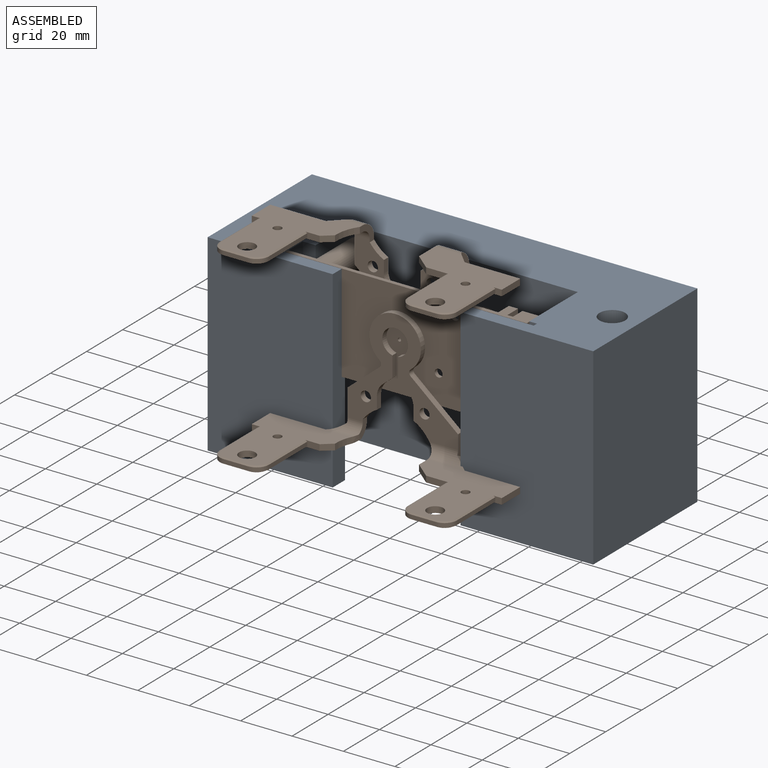
[diagram: assembled view]
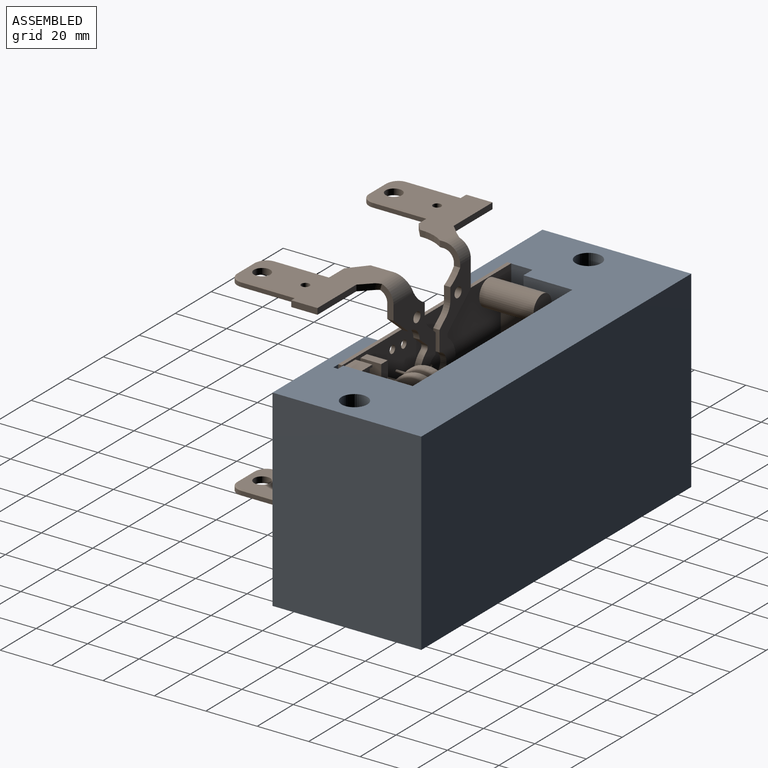
[diagram: assembled view, second angle]
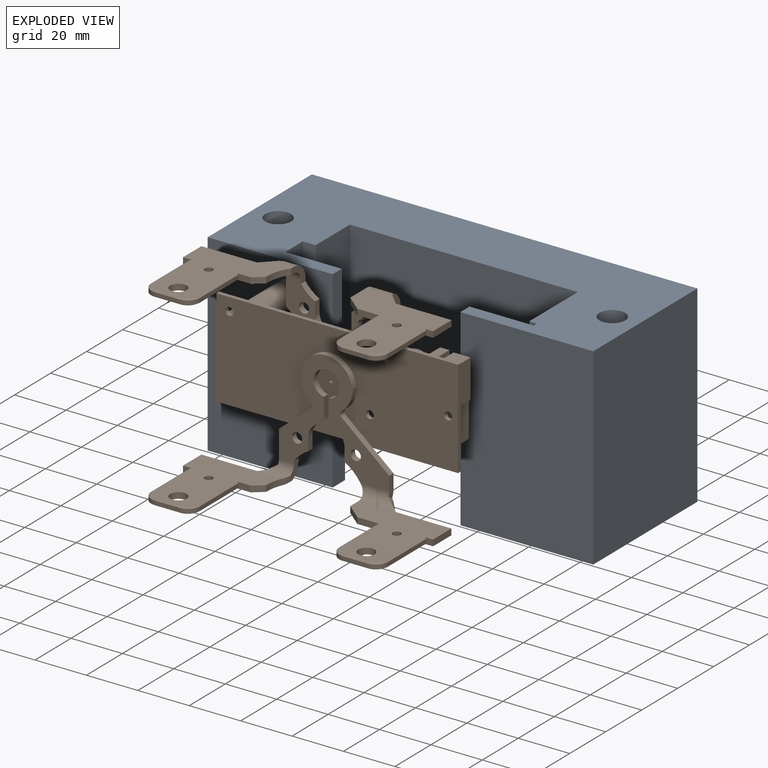
[diagram: exploded view]
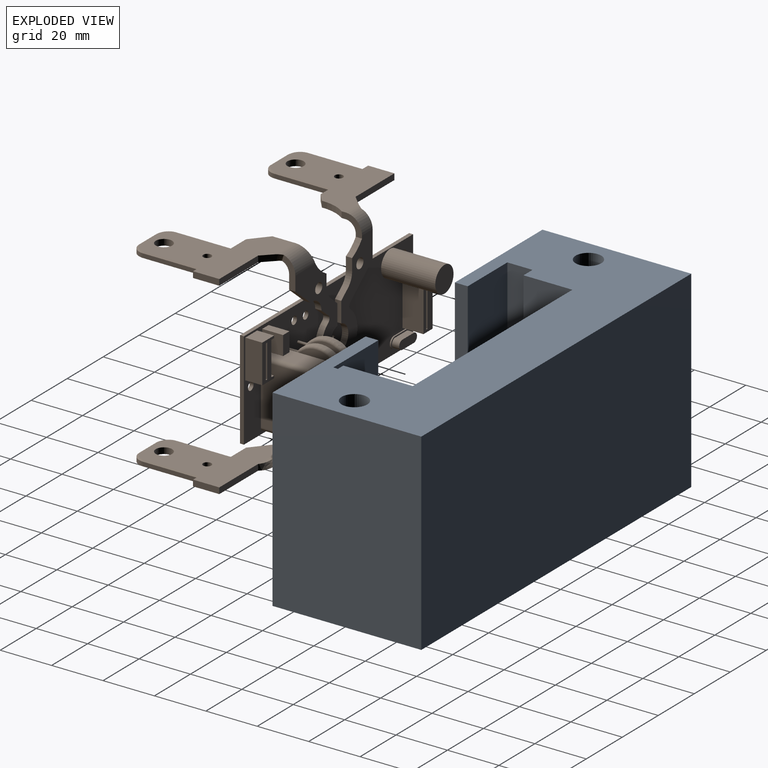
[diagram: exploded view, second angle]
ASSEMBLY  parts=2 mates=3
PART A: 24 faces, bbox 150x57.9x75 mm
  f0: plane 75x57.9mm, normal (-1,0,0), area 4342.5mm2, adj f2,f8,f9,f22
  f1: plane 75x57.9mm, normal (1,0,0), area 4342.5mm2, adj f2,f8,f9,f23
  f2: plane 150x57.9mm, normal (0,0,1), area 5670.5mm2, adj f0,f1,f3,f4,f5,f9,f10,f11
  f3: plane 75x6.8mm, normal (-1,0,0), area 441.6mm2, adj f2,f5,f6,f7,f8,f23
  f4: plane 75x6.8mm, normal (1,0,0), area 441.6mm2, adj f2,f8,f13,f17,f19,f22
  f5: plane 38x25mm, normal (0,1,0), area 950mm2, adj f2,f3,f6,f14
  f6: plane 25x1.8mm, normal (0,0,1), area 45mm2, adj f3,f5,f7,f14,f15
  f7: plane 37x22mm, normal (0,1,0), area 814mm2, adj f3,f6,f8,f20
  f8: plane 150x57.9mm, normal (0,0,-1), area 5795.1mm2, adj f0,f1,f3,f4,f7,f9,f10,f11
  f9: plane 150x75mm, normal (0,1,0), area 11250mm2, adj f0,f1,f2,f8
  f10: cylinder r=5mm len=75mm, axis (0,0,1), area 2356.2mm2, adj f2,f8
  f11: cylinder r=5mm len=75mm, axis (0,0,1), area 2356.2mm2, adj f2,f8
  f12: plane 38x9.8mm, normal (1,0,0), area 372.4mm2, adj f2,f13,f16,f17
  f13: plane 38x22mm, normal (0,1,0), area 836mm2, adj f2,f4,f12,f17
  f14: plane 38x1.8mm, normal (-1,0,0), area 68.4mm2, adj f2,f5,f6,f15
  f15: plane 38x3mm, normal (0,-1,0), area 114mm2, adj f2,f6,f14,f20
  f16: plane 38x5mm, normal (0,-1,0), area 190mm2, adj f2,f12,f17,f18
  f17: plane 22x9.8mm, normal (0,0,1), area 79.6mm2, adj f4,f12,f13,f16,f18,f19
  f18: plane 75x27mm, normal (1,0,0), area 1721mm2, adj f2,f8,f16,f17,f19,f21
  f19: plane 37x17mm, normal (0,1,0), area 629mm2, adj f4,f8,f17,f18
  f20: plane 75x27mm, normal (-1,0,0), area 2025mm2, adj f2,f7,f8,f15,f21
  f21: plane 88.7x75mm, normal (0,-1,0), area 6652.5mm2, adj f2,f8,f18,f20
  f22: plane 75x48.65mm, normal (0,-1,0), area 3648.7mm2, adj f0,f2,f4,f8
  f23: plane 75x51.65mm, normal (0,-1,0), area 3873.7mm2, adj f1,f2,f3,f8
PART B: 258 faces, bbox 76x68.2x97.3 mm
  f0: plane 93.98x38.1mm, normal (0,-1,0), area 3024.5mm2, adj f4,f5,f6,f7,f9,f10,f11,f12
  f1: plane 93.98x38.1mm, normal (0,1,0), area 2408.6mm2, adj f4,f5,f6,f7,f9,f10,f11,f12
  f2: plane 24.06x13.7mm, normal (0,1,0), area 150.1mm2, adj f6,f8,f92,f93,f98,f99,f100,f101
  f3: plane 24.06x13.7mm, normal (0,-1,0), area 150.1mm2, adj f4,f8,f178,f179,f184,f185,f186,f187
  f4: plane 93.98x1.52mm, normal (1,0,0), area 143.2mm2, adj f0,f1,f3,f5,f7,f173,f174
  f5: plane 38.1x1.52mm, normal (0,0,1), area 58.1mm2, adj f0,f1,f4,f6
  f6: plane 93.98x1.52mm, normal (-1,0,0), area 143.2mm2, adj f0,f1,f2,f5,f7,f87,f88
  f7: plane 38.1x1.52mm, normal (0,0,-1), area 58.1mm2, adj f0,f1,f4,f6
  f8: cylinder r=0.64mm len=1.52mm, axis (0,-1,0), area 6.1mm2, adj f2,f3
  f9: cylinder r=1.52mm len=3.05mm, axis (0,1,0), area 14.6mm2, adj f0,f1
  f10: cylinder r=1.52mm len=3.05mm, axis (0,1,0), area 14.6mm2, adj f0,f1
  f11: cylinder r=1.52mm len=3.05mm, axis (0,-1,0), area 14.6mm2, adj f0,f1
  f12: cylinder r=1.52mm len=3.05mm, axis (0,-1,0), area 14.6mm2, adj f0,f1
  f13: cylinder r=1.52mm len=3.05mm, axis (0,-1,0), area 14.6mm2, adj f0,f1
  f14: plane 22.1x8.13mm, normal (0,0,-1), area 179.6mm2, adj f1,f15,f16,f17
  f15: plane 8.13x1.27mm, normal (-0.71,0,-0.71), area 14.6mm2, adj f1,f14,f16,f19
  f16: plane 23.37x5.08mm, normal (0,1,0), area 101.6mm2, adj f14,f15,f17,f18,f19,f20,f21,f22
  f17: plane 8.13x5.08mm, normal (1,0,0), area 41.3mm2, adj f1,f14,f16,f18
  f18: plane 23.37x8.13mm, normal (0,0,1), area 189.9mm2, adj f1,f16,f17,f19
  f19: plane 8.13x3.81mm, normal (-1,0,0), area 31mm2, adj f1,f15,f16,f18
  f20: plane 2.54x0.76mm, normal (-1,0,0), area 1.9mm2, adj f16,f21,f23,f24
  f21: plane 21.34x2.54mm, normal (0,0,-1), area 54.2mm2, adj f16,f20,f22,f24
  f22: plane 2.54x0.76mm, normal (1,0,0), area 1.9mm2, adj f16,f21,f23,f24
  f23: plane 21.34x2.54mm, normal (0,0,1), area 54.2mm2, adj f16,f20,f22,f24
  f24: plane 21.34x0.76mm, normal (0,1,0), area 16.3mm2, adj f20,f21,f22,f23
  f25: cylinder r=5.08mm len=21.08mm, axis (0,1,0), area 672.9mm2, adj f1,f26
  f26: plane 10.16x10.16mm, normal (0,1,0), area 81.1mm2, adj f25
  f27: plane 14.99x6.6mm, normal (0,0,1), area 99mm2, adj f1,f28,f34,f35
  f28: plane 6.6x6.6mm, normal (-1,0,0), area 43.6mm2, adj f1,f27,f29,f35
  f29: plane 6.6x0.89mm, normal (0,0,-1), area 5.9mm2, adj f1,f28,f30,f35
  f30: plane 6.6x1.52mm, normal (1,0,0), area 10.1mm2, adj f1,f29,f31,f35
  f31: plane 13.21x6.6mm, normal (0,0,-1), area 87.2mm2, adj f1,f30,f32,f35
  f32: plane 6.6x1.52mm, normal (-1,0,0), area 10.1mm2, adj f1,f31,f33,f35
  f33: plane 6.6x0.89mm, normal (0,0,-1), area 5.9mm2, adj f1,f32,f34,f35
  f34: plane 6.6x6.6mm, normal (1,0,0), area 43.6mm2, adj f1,f27,f33,f35
  f35: plane 14.99x6.6mm, normal (0,1,0), area 69mm2, adj f27,f28,f29,f30,f31,f32,f33,f34
  f36: plane 2.54x0.76mm, normal (-1,0,0), area 1.9mm2, adj f35,f37,f39,f40
  f37: plane 12.95x2.54mm, normal (0,0,-1), area 32.9mm2, adj f35,f36,f38,f40
  f38: plane 2.54x0.76mm, normal (1,0,0), area 1.9mm2, adj f35,f37,f39,f40
  f39: plane 12.95x2.54mm, normal (0,0,1), area 32.9mm2, adj f35,f36,f38,f40
  f40: plane 12.95x0.76mm, normal (0,1,0), area 9.9mm2, adj f36,f37,f38,f39
  f41: cylinder r=2.29mm len=4.57mm, axis (0,1,0), area 3.6mm2, adj f1,f42,f48,f50
  f42: plane 10.92x4.57mm, normal (0,1,0), area 12.9mm2, adj f41,f43,f45,f46,f47,f48,f49,f50
  f43: plane 6.35x2.79mm, normal (-1,0,0), area 17.7mm2, adj f42,f44,f45,f47
  f44: plane 9.91x3.56mm, normal (0,1,0), area 32.5mm2, adj f43,f45,f46,f47
  f45: cylinder r=1.78mm len=3.56mm, axis (0,1,0), area 15.6mm2, adj f42,f43,f44,f46
  f46: plane 6.35x2.79mm, normal (1,0,0), area 17.7mm2, adj f42,f44,f45,f47
  f47: cylinder r=1.78mm len=3.56mm, axis (0,1,0), area 15.6mm2, adj f42,f43,f44,f46
  f48: plane 6.35x0.51mm, normal (-1,0,0), area 3.2mm2, adj f1,f41,f42,f49
  f49: cylinder r=2.29mm len=4.57mm, axis (0,1,0), area 3.6mm2, adj f1,f42,f48,f50
  f50: plane 6.35x0.51mm, normal (1,0,0), area 3.2mm2, adj f1,f41,f42,f49
  f51: plane 8.13x3.56mm, normal (1,0,0), area 28.9mm2, adj f1,f52,f54,f55
  f52: plane 8.13x7.37mm, normal (0,0,1), area 59.9mm2, adj f1,f51,f53,f55
  f53: plane 8.13x3.56mm, normal (-1,0,0), area 28.9mm2, adj f1,f52,f54,f55
  f54: plane 8.13x7.37mm, normal (0,0,-1), area 59.9mm2, adj f1,f51,f53,f55
  f55: plane 7.37x3.56mm, normal (0,1,0), area 26.2mm2, adj f51,f52,f53,f54
  f56: cylinder r=0.51mm len=4.28mm, axis (0,1,0), area 12.2mm2, adj f1,f57,f58
  f57: torus R=9.27mm, axis (0,0,-1), area 98.4mm2, adj f56,f58,f62
  f58: cylinder r=10.29mm len=20.57mm, axis (0,0,-1), area 82.1mm2, adj f56,f57,f59,f61
  f59: torus R=9.27mm, axis (0,0,-1), area 98.5mm2, adj f58,f60,f61
  f60: plane 18.54x18.54mm, normal (0,0,-1), area 270mm2, adj f59
  f61: cylinder r=0.51mm len=4.28mm, axis (0,1,0), area 12.2mm2, adj f1,f58,f59
  f62: plane 18.54x18.54mm, normal (0,0,1), area 270mm2, adj f57
  f63: cylinder r=0.51mm len=4.28mm, axis (0,1,0), area 12.2mm2, adj f1,f64,f65
  f64: torus R=9.27mm, axis (0,0,-1), area 98.5mm2, adj f63,f65,f66
  f65: cylinder r=10.29mm len=20.57mm, axis (0,0,-1), area 82.1mm2, adj f63,f64,f67,f69
  f66: plane 18.54x18.54mm, normal (0,0,-1), area 270mm2, adj f64
  f67: torus R=9.27mm, axis (0,0,-1), area 98.4mm2, adj f65,f68,f69
  f68: plane 18.54x18.54mm, normal (0,0,1), area 270mm2, adj f67
  f69: cylinder r=0.51mm len=4.28mm, axis (0,1,0), area 12.2mm2, adj f1,f65,f67
  f70: plane 17.78x7.37mm, normal (-1,0,0), area 131mm2, adj f1,f71,f74,f86
  f71: cylinder r=0.76mm len=7.37mm, axis (0,0,1), area 8.8mm2, adj f70,f72,f73,f85
  f72: plane 24.89x8.89mm, normal (0,1,0), area 220.8mm2, adj f71,f73,f76,f77,f80,f81,f84,f85
  f73: torus R=0.76mm, axis (0,-1,0), area 2.3mm2, adj f71,f72,f74,f76
  f74: cylinder r=1.52mm len=17.78mm, axis (0,-1,0), area 42.6mm2, adj f1,f70,f73,f75
  f75: plane 23.37x17.78mm, normal (0,0,-1), area 415.5mm2, adj f1,f74,f76,f78
  f76: cylinder r=0.76mm len=23.37mm, axis (-1,0,0), area 28mm2, adj f72,f73,f75,f77
  f77: torus R=0.76mm, axis (0,-1,0), area 2.3mm2, adj f72,f76,f78,f80
  f78: cylinder r=1.52mm len=17.78mm, axis (0,-1,0), area 42.6mm2, adj f1,f75,f77,f79
  f79: plane 17.78x7.37mm, normal (1,0,0), area 131mm2, adj f1,f78,f80,f82
  f80: cylinder r=0.76mm len=7.37mm, axis (0,0,-1), area 8.8mm2, adj f72,f77,f79,f81
  f81: torus R=0.76mm, axis (0,-1,0), area 2.3mm2, adj f72,f80,f82,f84
  f82: cylinder r=1.52mm len=17.78mm, axis (0,-1,0), area 42.6mm2, adj f1,f79,f81,f83
  f83: plane 23.37x17.78mm, normal (0,0,1), area 415.5mm2, adj f1,f82,f84,f86
  f84: cylinder r=0.76mm len=23.37mm, axis (1,0,0), area 28mm2, adj f72,f81,f83,f85
  f85: torus R=0.76mm, axis (0,-1,0), area 2.3mm2, adj f71,f72,f84,f86
  f86: cylinder r=1.52mm len=17.78mm, axis (0,-1,0), area 42.6mm2, adj f1,f70,f83,f85
  f87: plane 12.34x11.64mm, normal (0,-1,0), area 105.4mm2, adj f6,f89,f93,f94,f96,f142,f143,f167
  f88: plane 17.59x12.34mm, normal (0,-1,0), area 153.1mm2, adj f6,f91,f95,f97,f98,f135,f137,f168
  f89: cylinder r=1.98mm len=3.96mm, axis (0,1,0), area 30.4mm2, adj f87,f90
  f90: plane 42.93x41.41mm, normal (0,1,0), area 616.9mm2, adj f89,f91,f92,f93,f94,f95,f96,f97
  f91: cylinder r=1.98mm len=3.96mm, axis (0,1,0), area 30.4mm2, adj f88,f90
  f92: plane 3.76x3.16mm, normal (-0.77,0,0.64), area 12mm2, adj f2,f90,f93,f102
  f93: cylinder r=6.35mm len=4.86mm, axis (0,1,0), area 13.5mm2, adj f2,f87,f90,f92,f94
  f94: plane 4.72x2.44mm, normal (0,0,1), area 11.5mm2, adj f87,f90,f93,f96
  f95: cylinder r=15.49mm len=6.19mm, axis (0,1,0), area 21mm2, adj f88,f90,f97,f103
  f96: cylinder r=15.49mm len=5.49mm, axis (0,1,0), area 17.9mm2, adj f87,f90,f94,f167
  f97: plane 4.72x2.44mm, normal (0,0,-1), area 11.5mm2, adj f88,f90,f95,f98
  f98: cylinder r=6.35mm len=4.86mm, axis (0,1,0), area 13.5mm2, adj f2,f88,f90,f97,f99
  f99: plane 3.76x3.16mm, normal (-0.77,0,-0.64), area 12mm2, adj f2,f90,f98,f100
  f100: plane 7.96x2.44mm, normal (0,0,-1), area 19.4mm2, adj f2,f90,f99,f101
  f101: cylinder r=5mm len=10.01mm, axis (0,-1,0), area 71.4mm2, adj f2,f90,f100,f102
  f102: plane 7.96x2.44mm, normal (0,0,1), area 19.4mm2, adj f2,f90,f92,f101
  f103: bspline ~6.73x6.71mm, area 20.6mm2, adj f95,f104,f133,f168
  f104: cylinder r=15.49mm len=2.36mm, axis (-1,0,0), area 0.9mm2, adj f103,f105,f108,f168,f172
  f105: plane 39.82x36.12mm, normal (-1,0,0), area 807.4mm2, adj f104,f107,f111,f115,f116,f117,f118,f119
  f106: plane 39.82x33.07mm, normal (-1,0,0), area 747.5mm2, adj f110,f112,f134,f145,f146,f147,f148,f150
  f107: cylinder r=1.59mm len=3.18mm, axis (-1,0,0), area 23.6mm2, adj f105,f108
  f108: plane 39.75x36.12mm, normal (1,0,0), area 806.6mm2, adj f104,f107,f111,f113,f121,f122,f123,f124
  f109: plane 39.75x33.07mm, normal (1,0,0), area 746.9mm2, adj f110,f112,f145,f146,f147,f148,f156,f157
  f110: cylinder r=1.59mm len=3.18mm, axis (-1,0,0), area 23.6mm2, adj f106,f109
  f111: cylinder r=3.17mm len=6.35mm, axis (-1,0,0), area 47.1mm2, adj f105,f108
  f112: cylinder r=3.17mm len=6.35mm, axis (-1,0,0), area 47.1mm2, adj f106,f109
  f113: plane 21.29x0.64mm, normal (0.87,0,-0.5), area 15.7mm2, adj f108,f114,f125,f170
  f114: plane 21.29x1.63mm, normal (0,0,-1), area 34.6mm2, adj f113,f115,f126,f170
  f115: plane 21.29x0.64mm, normal (-0.87,0,-0.5), area 15.7mm2, adj f105,f114,f116,f170
  f116: cone r=4.51mm half-angle=60deg, axis (1,0,0), area 5.2mm2, adj f105,f115,f117,f126
  f117: plane 9.4x0.64mm, normal (-0.87,-0.5,0), area 6.9mm2, adj f105,f116,f118,f127
  f118: cone r=4.51mm half-angle=60deg, axis (1,0,0), area 5.2mm2, adj f105,f117,f119,f128
  f119: plane 21.29x0.64mm, normal (-0.87,0,0.5), area 15.7mm2, adj f105,f118,f120,f121
  f120: plane 21.29x1.63mm, normal (0,0,1), area 34.6mm2, adj f119,f121,f122,f128
  f121: plane 3.18x2.36mm, normal (0,-1,0), area 6.2mm2, adj f105,f108,f119,f120,f122,f129
  f122: plane 21.29x0.64mm, normal (0.87,0,0.5), area 15.7mm2, adj f108,f120,f121,f123
  f123: cone r=4.51mm half-angle=60deg, axis (-1,0,0), area 5.2mm2, adj f108,f122,f124,f128
  f124: plane 9.4x0.64mm, normal (0.87,-0.5,0), area 6.9mm2, adj f108,f123,f125,f127
  f125: cone r=4.51mm half-angle=60deg, axis (-1,0,0), area 5.2mm2, adj f108,f113,f124,f126
  f126: cylinder r=4.83mm len=4.83mm, axis (1,0,0), area 12.3mm2, adj f114,f116,f125,f127
  f127: plane 9.4x1.63mm, normal (0,-1,0), area 15.3mm2, adj f117,f124,f126,f128
  f128: cylinder r=4.83mm len=4.83mm, axis (1,0,0), area 12.3mm2, adj f118,f120,f123,f127
  f129: plane 10.21x2.36mm, normal (0,0,1), area 24.1mm2, adj f105,f108,f121,f130
  f130: plane 21.59x2.36mm, normal (0,1,0), area 51mm2, adj f105,f108,f129,f131
  f131: plane 4.14x4.14mm, normal (0,0.71,0.71), area 13.8mm2, adj f105,f108,f130,f132,f168
  f132: bspline ~2.9x2.18mm, area 5.1mm2, adj f131,f133,f135,f168
  f133: cylinder r=6.43mm len=12.58mm, axis (0,0,-1), area 102.7mm2, adj f90,f103,f105,f132,f135
  f134: cylinder r=6.43mm len=7.34mm, axis (0,0,-1), area 60.9mm2, adj f90,f106,f143,f144,f167
  f135: plane 11.73x5.23mm, normal (0,0,1), area 29.7mm2, adj f88,f90,f132,f133,f137,f168
  f136: plane 3.9x3.28mm, normal (0.77,0,0.64), area 12.4mm2, adj f1,f90,f138,f139
  f137: plane 8.42x7.07mm, normal (0.77,0,0.64), area 26.8mm2, adj f1,f88,f90,f135,f138
  f138: cylinder r=5.33mm len=6.1mm, axis (0,1,0), area 21.9mm2, adj f1,f90,f136,f137
  f139: cylinder r=1.52mm len=2.44mm, axis (0,1,0), area 6.7mm2, adj f1,f90,f136,f140
  f140: cylinder r=10.01mm len=20.02mm, axis (0,-1,0), area 121.6mm2, adj f1,f90,f139,f141
  f141: cylinder r=1.52mm len=2.44mm, axis (0,1,0), area 6.7mm2, adj f1,f90,f140,f142
  f142: plane 12.49x10.48mm, normal (0.77,0,-0.64), area 39.7mm2, adj f1,f87,f90,f141,f143
  f143: plane 16.72x5.23mm, normal (0,0,-1), area 41.8mm2, adj f87,f90,f134,f142,f144,f169
  f144: bspline ~2.9x2.18mm, area 5.1mm2, adj f134,f143,f145,f169
  f145: plane 4.14x4.14mm, normal (0,0.71,-0.71), area 13.8mm2, adj f106,f109,f144,f146,f169
  f146: plane 21.59x2.36mm, normal (0,1,0), area 51mm2, adj f106,f109,f145,f147
  f147: plane 10.21x2.36mm, normal (0,0,-1), area 24.1mm2, adj f106,f109,f146,f148
  f148: plane 3.18x2.36mm, normal (0,-1,0), area 6.2mm2, adj f106,f109,f147,f149,f150,f161
  f149: plane 21.29x1.63mm, normal (0,0,-1), area 34.6mm2, adj f148,f150,f161,f162
  f150: plane 21.29x0.64mm, normal (-0.87,0,-0.5), area 15.7mm2, adj f106,f148,f149,f151
  f151: cone r=4.51mm half-angle=60deg, axis (1,0,0), area 5.2mm2, adj f106,f150,f152,f162
  f152: plane 9.4x0.64mm, normal (-0.87,-0.5,0), area 6.9mm2, adj f106,f151,f153,f163
  f153: cone r=4.51mm half-angle=60deg, axis (1,0,0), area 5.2mm2, adj f106,f152,f154,f164
  f154: plane 21.29x0.64mm, normal (-0.87,0,0.5), area 15.7mm2, adj f106,f153,f155,f156
  f155: plane 21.29x1.63mm, normal (0,0,1), area 34.6mm2, adj f154,f156,f157,f164
  f156: plane 5.46x2.36mm, normal (0,-1,0), area 11.6mm2, adj f106,f109,f154,f155,f157,f165
  f157: plane 21.29x0.64mm, normal (0.87,0,0.5), area 15.7mm2, adj f109,f155,f156,f158
  f158: cone r=4.51mm half-angle=60deg, axis (-1,0,0), area 5.2mm2, adj f109,f157,f159,f164
  f159: plane 9.4x0.64mm, normal (0.87,-0.5,0), area 6.9mm2, adj f109,f158,f160,f163
  f160: cone r=4.51mm half-angle=60deg, axis (-1,0,0), area 5.2mm2, adj f109,f159,f161,f162
  f161: plane 21.29x0.64mm, normal (0.87,0,-0.5), area 15.7mm2, adj f109,f148,f149,f160
  f162: cylinder r=4.83mm len=4.83mm, axis (1,0,0), area 12.3mm2, adj f149,f151,f160,f163
  f163: plane 9.4x1.63mm, normal (0,-1,0), area 15.3mm2, adj f152,f159,f162,f164
  f164: cylinder r=4.83mm len=4.83mm, axis (1,0,0), area 12.3mm2, adj f153,f155,f158,f163
  f165: plane 3.77x3.17mm, normal (0,-0.77,0.64), area 11.6mm2, adj f106,f109,f156,f166
  f166: cylinder r=15.49mm len=9.69mm, axis (1,0,0), area 24.3mm2, adj f106,f109,f165,f167
  f167: plane 7.92x7.5mm, normal (0,0,1), area 25.9mm2, adj f87,f90,f96,f106,f109,f134,f166,f169
  f168: cylinder r=4.06mm len=12.66mm, axis (0,0,-1), area 62.7mm2, adj f88,f103,f104,f108,f131,f132,f135
  f169: cylinder r=4.06mm len=7.42mm, axis (0,0,-1), area 38.6mm2, adj f87,f109,f143,f144,f145,f167
  f170: plane 8.51x2.36mm, normal (0,-1,0), area 18.8mm2, adj f105,f108,f113,f114,f115,f171
  f171: plane 6.66x5.59mm, normal (0,-0.77,-0.64), area 20.5mm2, adj f105,f108,f170,f172
  f172: plane 8.38x2.36mm, normal (0,0,-1), area 19.8mm2, adj f104,f105,f108,f171
  f173: plane 17.59x12.34mm, normal (0,1,0), area 153.7mm2, adj f4,f177,f181,f183,f184,f220,f221,f232
  f174: plane 12.34x11.64mm, normal (0,1,0), area 106mm2, adj f4,f175,f179,f180,f182,f225,f226,f233
  f175: cylinder r=1.98mm len=3.96mm, axis (0,1,0), area 29.4mm2, adj f174,f176
  f176: plane 42.93x41.41mm, normal (0,-1,0), area 628mm2, adj f175,f177,f178,f179,f180,f181,f182,f183
  f177: cylinder r=1.98mm len=3.96mm, axis (0,1,0), area 29.4mm2, adj f173,f176
  f178: plane 3.76x3.16mm, normal (0.77,0,0.64), area 11.6mm2, adj f3,f176,f179,f188
  f179: cylinder r=6.35mm len=4.86mm, axis (0,-1,0), area 13.1mm2, adj f3,f174,f176,f178,f180
  f180: plane 4.82x2.36mm, normal (0,0,1), area 11.4mm2, adj f174,f176,f179,f182
  f181: cylinder r=15.49mm len=6.13mm, axis (0,-1,0), area 20mm2, adj f173,f176,f183,f189
  f182: cylinder r=15.49mm len=5.49mm, axis (0,-1,0), area 17.3mm2, adj f174,f176,f180,f257
  f183: plane 4.82x2.36mm, normal (0,0,-1), area 11.4mm2, adj f173,f176,f181,f184
  f184: cylinder r=6.35mm len=4.86mm, axis (0,-1,0), area 13.1mm2, adj f3,f173,f176,f183,f185
  f185: plane 3.76x3.16mm, normal (0.77,0,-0.64), area 11.6mm2, adj f3,f176,f184,f186
  f186: plane 7.96x2.36mm, normal (0,0,-1), area 18.8mm2, adj f3,f176,f185,f187
  f187: cylinder r=5mm len=10.01mm, axis (0,1,0), area 69.1mm2, adj f3,f176,f186,f188
  f188: plane 7.96x2.36mm, normal (0,0,1), area 18.8mm2, adj f3,f176,f178,f187
  f189: bspline ~6.71x6.68mm, area 20.4mm2, adj f181,f190,f218,f232
  f190: cylinder r=15.49mm len=2.36mm, axis (-1,0,0), area 1.1mm2, adj f189,f192,f195,f256
  f191: plane 35.86x31.63mm, normal (-1,0,0), area 712.5mm2, adj f196,f197,f201,f202,f203,f204,f205,f207
  f192: plane 36.13x35.86mm, normal (-1,0,0), area 758.4mm2, adj f190,f193,f198,f218,f235,f236,f237,f238
  f193: cylinder r=1.59mm len=3.18mm, axis (1,0,0), area 23.6mm2, adj f192,f195
  f194: plane 35.86x31.63mm, normal (1,0,0), area 712.5mm2, adj f196,f197,f199,f207,f208,f209,f210,f211
  f195: plane 36.13x35.86mm, normal (1,0,0), area 758.4mm2, adj f190,f193,f198,f232,f235,f236,f237,f238
  f196: cylinder r=1.59mm len=3.18mm, axis (1,0,0), area 23.6mm2, adj f191,f194
  f197: cylinder r=3.17mm len=6.35mm, axis (1,0,0), area 47.1mm2, adj f191,f194
  f198: cylinder r=3.17mm len=6.35mm, axis (1,0,0), area 47.1mm2, adj f192,f195
  f199: plane 21.29x0.64mm, normal (0.87,0,-0.5), area 15.7mm2, adj f194,f200,f211,f231
  f200: plane 21.29x1.63mm, normal (0,0,-1), area 34.6mm2, adj f199,f201,f212,f231
  f201: plane 21.29x0.64mm, normal (-0.87,0,-0.5), area 15.7mm2, adj f191,f200,f202,f231
  f202: cone r=4.51mm half-angle=60deg, axis (1,0,0), area 5.2mm2, adj f191,f201,f203,f212
  f203: plane 9.4x0.64mm, normal (-0.87,-0.5,0), area 6.9mm2, adj f191,f202,f204,f213
  f204: cone r=4.51mm half-angle=60deg, axis (1,0,0), area 5.2mm2, adj f191,f203,f205,f214
  f205: plane 21.29x0.64mm, normal (-0.87,0,0.5), area 15.7mm2, adj f191,f204,f206,f207
  f206: plane 21.29x1.63mm, normal (0,0,1), area 34.6mm2, adj f205,f207,f208,f214
  f207: plane 5.46x2.36mm, normal (0,-1,0), area 11.6mm2, adj f191,f194,f205,f206,f208,f215
  f208: plane 21.29x0.64mm, normal (0.87,0,0.5), area 15.7mm2, adj f194,f206,f207,f209
  f209: cone r=4.51mm half-angle=60deg, axis (-1,0,0), area 5.2mm2, adj f194,f208,f210,f214
  f210: plane 9.4x0.64mm, normal (0.87,-0.5,0), area 6.9mm2, adj f194,f209,f211,f213
  f211: cone r=4.51mm half-angle=60deg, axis (-1,0,0), area 5.2mm2, adj f194,f199,f210,f212
  f212: cylinder r=4.83mm len=4.83mm, axis (1,0,0), area 12.3mm2, adj f200,f202,f211,f213
  f213: plane 9.4x1.63mm, normal (0,-1,0), area 15.3mm2, adj f203,f210,f212,f214
  f214: cylinder r=4.83mm len=4.83mm, axis (1,0,0), area 12.3mm2, adj f204,f206,f209,f213
  f215: plane 3.77x3.17mm, normal (0,-0.77,0.64), area 11.6mm2, adj f191,f194,f207,f216
  f216: cylinder r=15.49mm len=7.22mm, axis (1,0,0), area 17.6mm2, adj f191,f194,f215,f217
  f217: bspline ~3.43x3.22mm, area 7.2mm2, adj f216,f219,f233,f257
  f218: cylinder r=4.06mm len=16.6mm, axis (0,0,-1), area 76.6mm2, adj f176,f189,f192,f220,f234
  f219: cylinder r=4.06mm len=11.3mm, axis (0,0,-1), area 48.5mm2, adj f176,f191,f217,f226,f227,f257
  f220: plane 8.37x2.76mm, normal (0,0,1), area 18.8mm2, adj f173,f176,f218,f221,f232,f234
  f221: plane 18.43x15.46mm, normal (-0.77,0,0.64), area 56.8mm2, adj f0,f173,f176,f220,f222
  f222: cylinder r=1.52mm len=2.38mm, axis (0,-1,0), area 6.5mm2, adj f0,f176,f221,f223
  f223: cylinder r=10.01mm len=20.02mm, axis (0,1,0), area 117.8mm2, adj f0,f176,f222,f224
  f224: cylinder r=1.52mm len=2.38mm, axis (0,-1,0), area 6.5mm2, adj f0,f176,f223,f225
  f225: plane 12.49x10.48mm, normal (-0.77,0,-0.64), area 38.5mm2, adj f0,f174,f176,f224,f226
  f226: plane 13.36x2.76mm, normal (0,0,-1), area 30.5mm2, adj f174,f176,f219,f225,f227,f233
  f227: bspline ~6.06x5.53mm, area 18.9mm2, adj f219,f226,f228,f233
  f228: plane 2.36x0.18mm, normal (0,0.71,-0.71), area 0.6mm2, adj f191,f194,f227,f229
  f229: plane 21.59x2.36mm, normal (0,1,0), area 51mm2, adj f191,f194,f228,f230
  f230: plane 10.21x2.36mm, normal (0,0,-1), area 24.1mm2, adj f191,f194,f229,f231
  f231: plane 3.18x2.36mm, normal (0,-1,0), area 6.2mm2, adj f191,f194,f199,f200,f201,f230
  f232: cylinder r=6.43mm len=16.6mm, axis (0,0,-1), area 121.2mm2, adj f173,f189,f195,f220,f234
  f233: cylinder r=6.43mm len=11.3mm, axis (0,0,-1), area 76.6mm2, adj f174,f194,f217,f226,f227,f257
  f234: bspline ~6.06x5.53mm, area 18.9mm2, adj f218,f220,f232,f235
  f235: plane 2.36x0.18mm, normal (0,0.71,0.71), area 0.6mm2, adj f192,f195,f234,f236
  f236: plane 21.59x2.36mm, normal (0,1,0), area 51mm2, adj f192,f195,f235,f237
  f237: plane 10.21x2.36mm, normal (0,0,1), area 24.1mm2, adj f192,f195,f236,f238
  f238: plane 3.18x2.36mm, normal (0,-1,0), area 6.2mm2, adj f192,f195,f237,f239,f249,f250
  f239: plane 21.29x0.64mm, normal (0.87,0,0.5), area 15.7mm2, adj f195,f238,f240,f250
  f240: cone r=4.51mm half-angle=60deg, axis (-1,0,0), area 5.2mm2, adj f195,f239,f241,f251
  f241: plane 9.4x0.64mm, normal (0.87,-0.5,0), area 6.9mm2, adj f195,f240,f242,f252
  f242: cone r=4.51mm half-angle=60deg, axis (-1,0,0), area 5.2mm2, adj f195,f241,f243,f253
  f243: plane 21.29x0.64mm, normal (0.87,0,-0.5), area 15.7mm2, adj f195,f242,f244,f254
  f244: plane 21.29x1.63mm, normal (0,0,-1), area 34.6mm2, adj f243,f245,f253,f254
  f245: plane 21.29x0.64mm, normal (-0.87,0,-0.5), area 15.7mm2, adj f192,f244,f246,f254
  f246: cone r=4.51mm half-angle=60deg, axis (1,0,0), area 5.2mm2, adj f192,f245,f247,f253
  f247: plane 9.4x0.64mm, normal (-0.87,-0.5,0), area 6.9mm2, adj f192,f246,f248,f252
  f248: cone r=4.51mm half-angle=60deg, axis (1,0,0), area 5.2mm2, adj f192,f247,f249,f251
  f249: plane 21.29x0.64mm, normal (-0.87,0,0.5), area 15.7mm2, adj f192,f238,f248,f250
  f250: plane 21.29x1.63mm, normal (0,0,1), area 34.6mm2, adj f238,f239,f249,f251
  f251: cylinder r=4.83mm len=4.83mm, axis (1,0,0), area 12.3mm2, adj f240,f248,f250,f252
  f252: plane 9.4x1.63mm, normal (0,-1,0), area 15.3mm2, adj f241,f247,f251,f253
  f253: cylinder r=4.83mm len=4.83mm, axis (1,0,0), area 12.3mm2, adj f242,f244,f246,f252
  f254: plane 8.51x2.36mm, normal (0,-1,0), area 18.8mm2, adj f192,f195,f243,f244,f245,f255
  f255: plane 6.66x5.59mm, normal (0,-0.77,-0.64), area 20.5mm2, adj f192,f195,f254,f256
  f256: plane 4.32x2.36mm, normal (0,0,-1), area 10.2mm2, adj f190,f192,f195,f255
  f257: plane 6.57x4.44mm, normal (0,0,1), area 15.4mm2, adj f174,f176,f182,f217,f219,f233
PLACE A rot(axis=(1,0,0),0deg) t=(-46.82,-56.45,268.16)mm
PLACE B rot(axis=(0,1,0),90deg) t=(-47.75,-98.27,324.21)mm
MATE planar B.f3 <-> A.f13  axis (0,-1,0) through (-47.86,-79.35,325.15)mm
MATE planar A.f12 <-> B.f7  axis (1,0,0) through (-95.17,-74.45,324.16)mm
MATE planar A.f17 <-> B.f4  axis (0,0,1) through (-88.44,-75.99,305.16)mm
